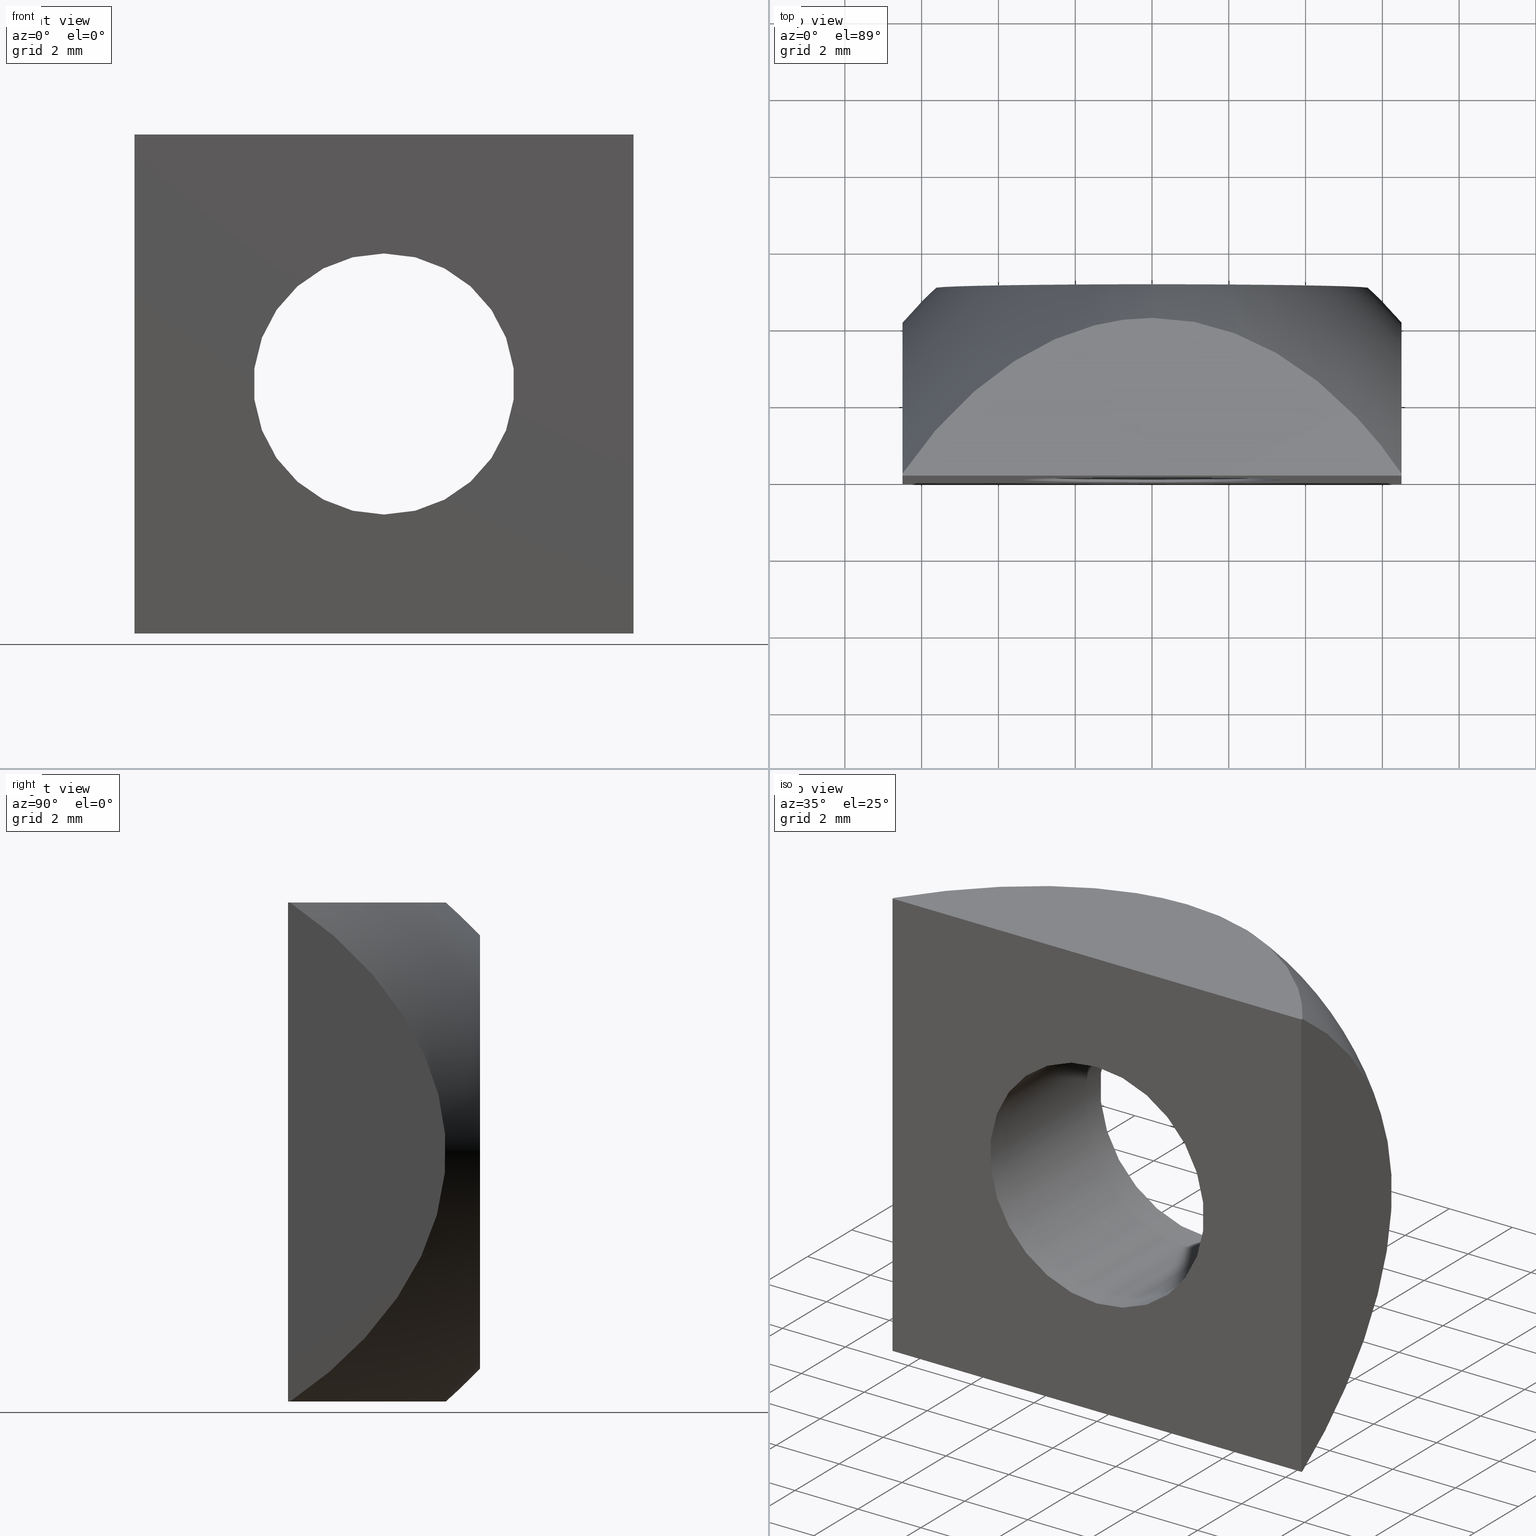
[diagram: canonical four-view strip — front | top / right | iso, engineering-drawing reading convention]
A machine part, canonical four-view strip (front | top / right | iso — engineering-drawing reading convention). The complete STEP part file that produces these views, byte-faithful:
ISO-10303-21;
HEADER;
FILE_DESCRIPTION (( 'STEP AP203' ),
    '1' );
FILE_NAME ('084.302.037.STEP',
    '2012-07-11T06:25:03',
    ( '' ),
    ( '' ),
    'SwSTEP 2.0',
    'SolidWorks 2011',
    '' );
FILE_SCHEMA (( 'CONFIG_CONTROL_DESIGN' ));
ENDSEC;

DATA;
#1 = EDGE_CURVE ( 'NONE', #430, #438, #247, .T. ) ;
#2 = APPROVAL ( #197, 'NON SPECIFICATO' ) ;
#3 = APPROVAL ( #134, 'NON SPECIFICATO' ) ;
#4 = EDGE_CURVE ( 'NONE', #365, #386, #443, .T. ) ;
#5 = ADVANCED_FACE ( 'NONE', ( #212 ), #454, .F. ) ;
#6 = ADVANCED_FACE ( 'NONE', ( #124 ), #341, .F. ) ;
#7 = EDGE_CURVE ( 'NONE', #131, #430, #218, .T. ) ;
#8 = EDGE_CURVE ( 'NONE', #238, #248, #72, .T. ) ;
#9 = EDGE_CURVE ( 'NONE', #305, #354, #57, .T. ) ;
#10 = EDGE_CURVE ( 'NONE', #416, #305, #100, .T. ) ;
#11 = EDGE_CURVE ( 'NONE', #416, #238, #85, .T. ) ;
#12 = CC_DESIGN_PERSON_AND_ORGANIZATION_ASSIGNMENT ( #192, #164, ( #61 ) ) ;
#13 = EDGE_CURVE ( 'NONE', #354, #438, #227, .T. ) ;
#14 = ADVANCED_FACE ( 'NONE', ( #237 ), #250, .F. ) ;
#15 = CC_DESIGN_PERSON_AND_ORGANIZATION_ASSIGNMENT ( #344, #348, ( #70 ) ) ;
#16 = EDGE_CURVE ( 'NONE', #226, #248, #53, .T. ) ;
#17 = CC_DESIGN_PERSON_AND_ORGANIZATION_ASSIGNMENT ( #189, #205, ( #46 ) ) ;
#18 = EDGE_CURVE ( 'NONE', #265, #216, #59, .T. ) ;
#19 = ADVANCED_FACE ( 'NONE', ( #174, #208 ), #435, .T. ) ;
#20 = ADVANCED_FACE ( 'NONE', ( #332 ), #80, .T. ) ;
#21 = EDGE_CURVE ( 'NONE', #149, #386, #66, .T. ) ;
#22 = EDGE_CURVE ( 'NONE', #130, #365, #94, .T. ) ;
#23 = EDGE_CURVE ( 'NONE', #248, #265, #58, .T. ) ;
#24 = CC_DESIGN_PERSON_AND_ORGANIZATION_ASSIGNMENT ( #196, #303, ( #83 ) ) ;
#25 = EDGE_CURVE ( 'NONE', #216, #305, #54, .T. ) ;
#26 = EDGE_CURVE ( 'NONE', #238, #416, #107, .T. ) ;
#27 = PRODUCT_RELATED_PRODUCT_CATEGORY ( 'detail', '', ( #61 ) ) ;
#28 = CC_DESIGN_DATE_AND_TIME_ASSIGNMENT ( #255, #357, ( #70 ) ) ;
#29 = EDGE_CURVE ( 'NONE', #365, #130, #86, .T. ) ;
#30 = ADVANCED_FACE ( 'NONE', ( #176 ), #342, .F. ) ;
#31 = ADVANCED_FACE ( 'NONE', ( #184, #320 ), #338, .F. ) ;
#32 = EDGE_CURVE ( 'NONE', #386, #149, #96, .T. ) ;
#33 = EDGE_CURVE ( 'NONE', #130, #149, #299, .T. ) ;
#34 = CC_DESIGN_DATE_AND_TIME_ASSIGNMENT ( #232, #333, ( #46 ) ) ;
#35 = CC_DESIGN_PERSON_AND_ORGANIZATION_ASSIGNMENT ( #326, #181, ( #83 ) ) ;
#36 = EDGE_CURVE ( 'NONE', #354, #226, #56, .T. ) ;
#37 = EDGE_CURVE ( 'NONE', #216, #430, #350, .T. ) ;
#38 = ADVANCED_FACE ( 'NONE', ( #163 ), #318, .F. ) ;
#39 = EDGE_CURVE ( 'NONE', #226, #295, #397, .T. ) ;
#40 = EDGE_CURVE ( 'NONE', #265, #131, #323, .T. ) ;
#41 = ADVANCED_FACE ( 'NONE', ( #319 ), #334, .F. ) ;
#42 = EDGE_CURVE ( 'NONE', #438, #295, #279, .T. ) ;
#43 = ADVANCED_FACE ( 'NONE', ( #225 ), #113, .T. ) ;
#44 = APPROVAL ( #302, 'NON SPECIFICATO' ) ;
#45 = EDGE_CURVE ( 'NONE', #295, #131, #368, .T. ) ;
#46 = PRODUCT_DEFINITION ( 'NON CONOSCIUTO', '', #83, #50 ) ;
#47 = MANIFOLD_SOLID_BREP ( 'Taglia-Rivoluzione2', #95 ) ;
#48 = UNCERTAINTY_MEASURE_WITH_UNIT (LENGTH_MEASURE( 1.000000000000000100E-005 ), #391, 'distance_accuracy_value', 'NONE');
#49 = PRODUCT_DEFINITION_SHAPE ( 'NONE', 'NONE',  #46 ) ;
#50 = DESIGN_CONTEXT ( 'detailed design', #52, 'design' ) ;
#51 = APPLICATION_CONTEXT ( 'configuration controlled 3d designs of mechanical parts and assemblies' ) ;
#52 = APPLICATION_CONTEXT ( 'configuration controlled 3d designs of mechanical parts and assemblies' ) ;
#53 = B_SPLINE_CURVE_WITH_KNOTS ( 'NONE', 3,
 ( #213, #294, #422, #173, #230, #264, #398, #126, #220, #202, #153, #393 ),
 .UNSPECIFIED., .F., .F.,
 ( 4, 2, 2, 2, 2, 4 ),
 ( 0.05469827054856388200, 0.05668888045020870100, 0.05867949035185351900, 0.05967479530267592900, 0.06067010025349833800, 0.06266071015514315700 ),
 .UNSPECIFIED. ) ;
#54 = B_SPLINE_CURVE_WITH_KNOTS ( 'NONE', 3,
 ( #423, #191, #271, #137, #364, #150, #395, #249, #245, #263, #235, #403 ),
 .UNSPECIFIED., .F., .F.,
 ( 4, 2, 2, 2, 2, 4 ),
 ( 0.05469827054856396500, 0.05668888045020877000, 0.05867949035185357500, 0.05967479530267597700, 0.06067010025349838000, 0.06266071015514318400 ),
 .UNSPECIFIED. ) ;
#55 = ADVANCED_BREP_SHAPE_REPRESENTATION ( '084.302.037', ( #47, #114 ), #88 ) ;
#56 = B_SPLINE_CURVE_WITH_KNOTS ( 'NONE', 3,
 ( #222, #347, #162, #292, #324, #285, #147, #252, #419, #321, #415, #118, #119, #388, #242, #405, #266, #360, #363, #179, #209, #449 ),
 .UNSPECIFIED., .F., .F.,
 ( 4, 2, 2, 2, 2, 2, 2, 2, 2, 2, 4 ),
 ( 0.05469827054856406900, 0.05668859883386818300, 0.05867892711917230300, 0.05967409126182435900, 0.06066925540447641600, 0.06265958368978052900, 0.06464991197508464200, 0.06664024026038875600, 0.06763540440304081900, 0.06863056854569286900, 0.07062089683099698200 ),
 .UNSPECIFIED. ) ;
#57 = B_SPLINE_CURVE_WITH_KNOTS ( 'NONE', 3,
 ( #229, #309, #442, #246, #254, #409, #387, #308, #389, #307, #366, #390 ),
 .UNSPECIFIED., .F., .F.,
 ( 4, 2, 2, 2, 2, 4 ),
 ( 0.0000000000000000000, 0.001990046668963425500, 0.003980093337926851100, 0.004975116672408563600, 0.005970140006890277100, 0.007960186675853698700 ),
 .UNSPECIFIED. ) ;
#58 = B_SPLINE_CURVE_WITH_KNOTS ( 'NONE', 3,
 ( #306, #167, #143, #396, #287, #210, #447, #445, #259, #327, #132, #444 ),
 .UNSPECIFIED., .F., .F.,
 ( 4, 2, 2, 2, 2, 4 ),
 ( 7.740424289688171000E-019, 0.001990046668963452900, 0.003980093337926904900, 0.004975116672408631300, 0.005970140006890356000, 0.007960186675853809700 ),
 .UNSPECIFIED. ) ;
#59 = B_SPLINE_CURVE_WITH_KNOTS ( 'NONE', 3,
 ( #427, #127, #300, #312, #180, #268, #253, #182, #155, #286, #258, #272, #313, #301, #122, #278, #121, #384, #429, #446, #193, #288 ),
 .UNSPECIFIED., .F., .F.,
 ( 4, 2, 2, 2, 2, 2, 2, 2, 2, 2, 4 ),
 ( 0.05469827054856389600, 0.05668859883386803000, 0.05867892711917216400, 0.05967409126182423400, 0.06066925540447630500, 0.06265958368978043200, 0.06464991197508457300, 0.06664024026038870000, 0.06763540440304077700, 0.06863056854569284100, 0.07062089683099698200 ),
 .UNSPECIFIED. ) ;
#60 = PERSON ( 'NON SPECIFICATO', 'NON SPECIFICATO', 'NON SPECIFICATO', ('NON SPECIFICATO'), ('NON SPECIFICATO'), ('NON SPECIFICATO') ) ;
#61 = PRODUCT ( '084.302.037', '084.302.037', '', ( #359 ) ) ;
#62 = AXIS2_PLACEMENT_3D ( 'NONE', #283, #284, #343 ) ;
#63 = AXIS2_PLACEMENT_3D ( 'NONE', #186, #450, #201 ) ;
#64 = VECTOR ( 'NONE', #159, 1000.000000000000000 ) ;
#65 = VECTOR ( 'NONE', #280, 1000.000000000000000 ) ;
#66 = CIRCLE ( 'NONE', #76, 3.399999999999999500 ) ;
#67 = AXIS2_PLACEMENT_3D ( 'NONE', #198, #178, #276 ) ;
#68 = VECTOR ( 'NONE', #233, 1000.000000000000000 ) ;
#69 = LOCAL_TIME ( 8, 25, 3.000000000000000000, #161 ) ;
#70 = SECURITY_CLASSIFICATION ( '', '', #335 ) ;
#71 = AXIS2_PLACEMENT_3D ( 'NONE', #125, #436, #195 ) ;
#72 = CIRCLE ( 'NONE', #106, 17.00000000000000000 ) ;
#73 = VECTOR ( 'NONE', #367, 1000.000000000000000 ) ;
#74 = AXIS2_PLACEMENT_3D ( 'NONE', #128, #410, #136 ) ;
#75 = CC_DESIGN_APPROVAL ( #2, ( #46 ) ) ;
#76 = AXIS2_PLACEMENT_3D ( 'NONE', #316, #169, #129 ) ;
#77 = VECTOR ( 'NONE', #379, 1000.000000000000000 ) ;
#78 = AXIS2_PLACEMENT_3D ( 'NONE', #219, #274, #394 ) ;
#79 = VECTOR ( 'NONE', #385, 1000.000000000000000 ) ;
#80 = TOROIDAL_SURFACE ( 'NONE', #62, -6.174269187523332600, 17.00000000000000000 ) ;
#81 = AXIS2_PLACEMENT_3D ( 'NONE', #439, #240, #330 ) ;
#82 = LOCAL_TIME ( 8, 25, 3.000000000000000000, #329 ) ;
#83 = PRODUCT_DEFINITION_FORMATION_WITH_SPECIFIED_SOURCE ( 'TUTTO', '', #61, .NOT_KNOWN. ) ;
#84 = AXIS2_PLACEMENT_3D ( 'NONE', #200, #418, #358 ) ;
#85 = CIRCLE ( 'NONE', #103, 5.644004798131256000 ) ;
#86 = CIRCLE ( 'NONE', #81, 3.399999999999999500 ) ;
#87 = VECTOR ( 'NONE', #371, 1000.000000000000000 ) ;
#88 =( GEOMETRIC_REPRESENTATION_CONTEXT ( 3 ) GLOBAL_UNCERTAINTY_ASSIGNED_CONTEXT ( ( #48 ) ) GLOBAL_UNIT_ASSIGNED_CONTEXT ( ( #391, #420, #346 ) ) REPRESENTATION_CONTEXT ( 'NONE', 'WORKASPACE' ) );
#89 = AXIS2_PLACEMENT_3D ( 'NONE', #188, #325, #277 ) ;
#90 = VECTOR ( 'NONE', #373, 1000.000000000000000 ) ;
#91 = CC_DESIGN_SECURITY_CLASSIFICATION ( #70, ( #83 ) ) ;
#92 = AXIS2_PLACEMENT_3D ( 'NONE', #175, #217, #166 ) ;
#93 = LOCAL_TIME ( 8, 25, 3.000000000000000000, #452 ) ;
#94 = CIRCLE ( 'NONE', #74, 3.399999999999999500 ) ;
#95 = CLOSED_SHELL ( 'NONE', ( #20, #41, #5, #30, #38, #14, #31, #19, #6, #43 ) ) ;
#96 = CIRCLE ( 'NONE', #78, 3.399999999999999500 ) ;
#97 = VECTOR ( 'NONE', #170, 1000.000000000000000 ) ;
#98 = CC_DESIGN_APPROVAL ( #44, ( #83 ) ) ;
#99 = AXIS2_PLACEMENT_3D ( 'NONE', #251, #345, #123 ) ;
#100 = CIRCLE ( 'NONE', #67, 17.00000000000000000 ) ;
#101 = LOCAL_TIME ( 8, 25, 3.000000000000000000, #328 ) ;
#102 = AXIS2_PLACEMENT_3D ( 'NONE', #353, #244, #406 ) ;
#103 = AXIS2_PLACEMENT_3D ( 'NONE', #440, #431, #156 ) ;
#104 = APPROVAL_PERSON_ORGANIZATION ( #352, #3, #275 ) ;
#105 = ORGANIZATION ( 'NON SPECIFICATO', 'NON SPECIFICATO', '' ) ;
#106 = AXIS2_PLACEMENT_3D ( 'NONE', #243, #404, #234 ) ;
#107 = CIRCLE ( 'NONE', #89, 5.644004798131256000 ) ;
#108 = AXIS2_PLACEMENT_3D ( 'NONE', #351, #380, #361 ) ;
#109 = APPROVAL_PERSON_ORGANIZATION ( #337, #44, #144 ) ;
#110 = AXIS2_PLACEMENT_3D ( 'NONE', #160, #322, #168 ) ;
#111 = AXIS2_PLACEMENT_3D ( 'NONE', #399, #311, #317 ) ;
#112 = CC_DESIGN_APPROVAL ( #3, ( #70 ) ) ;
#113 = TOROIDAL_SURFACE ( 'NONE', #84, -6.174269187523332600, 17.00000000000000000 ) ;
#114 = AXIS2_PLACEMENT_3D ( 'NONE', #206, #437, #152 ) ;
#115 = VECTOR ( 'NONE', #296, 1000.000000000000000 ) ;
#116 = APPROVAL_PERSON_ORGANIZATION ( #135, #2, #146 ) ;
#117 = LOCAL_TIME ( 8, 25, 3.000000000000000000, #154 ) ;
#118 = CARTESIAN_POINT ( 'NONE',  ( -6.499999999999999100, 4.109867876356189800, 0.6728596580752527200 ) ) ;
#119 = CARTESIAN_POINT ( 'NONE',  ( -6.500000000000000900, 3.993916635667155400, 1.325323139714466000 ) ) ;
#120 = ORIENTED_EDGE ( 'NONE', *, *, #8, .T. ) ;
#121 = CARTESIAN_POINT ( 'NONE',  ( 6.500000000000000900, 2.493975134977584500, -4.279363623376158700 ) ) ;
#122 = CARTESIAN_POINT ( 'NONE',  ( 6.500000000000001800, 3.255705233841443400, -3.184796144167166600 ) ) ;
#123 = DIRECTION ( 'NONE',  ( 1.000000000000000000, 0.0000000000000000000, -0.0000000000000000000 ) ) ;
#124 = FACE_OUTER_BOUND ( 'NONE', #260, .T. ) ;
#125 = CARTESIAN_POINT ( 'NONE',  ( -6.500000000000000000, 5.000000000000000000, -6.499999999999999100 ) ) ;
#126 = CARTESIAN_POINT ( 'NONE',  ( -2.579949745945144800, 3.540641047558074300, 6.500000000000001800 ) ) ;
#127 = CARTESIAN_POINT ( 'NONE',  ( 6.500000000000001800, 0.6029189208887844000, 6.130610147754108400 ) ) ;
#128 = CARTESIAN_POINT ( 'NONE',  ( 0.0000000000000000000, 0.0000000000000000000, 0.0000000000000000000 ) ) ;
#129 = DIRECTION ( 'NONE',  ( 0.0000000000000000000, 0.0000000000000000000, 1.000000000000000000 ) ) ;
#130 = VERTEX_POINT ( 'NONE', #304 ) ;
#131 = VERTEX_POINT ( 'NONE', #187 ) ;
#132 = CARTESIAN_POINT ( 'NONE',  ( 6.128323188261370000, 0.6063366316385198100, 6.499999999999999100 ) ) ;
#133 = ORIENTED_EDGE ( 'NONE', *, *, #39, .F. ) ;
#134 = APPROVAL_STATUS ( 'not_yet_approved' ) ;
#135 = PERSON_AND_ORGANIZATION ( #60, #105 ) ;
#136 = DIRECTION ( 'NONE',  ( 0.0000000000000000000, 0.0000000000000000000, -1.000000000000000000 ) ) ;
#137 = CARTESIAN_POINT ( 'NONE',  ( 4.797843221465077700, 2.074270503709216000, -6.500000000000000000 ) ) ;
#138 = DATE_AND_TIME ( #142, #69 ) ;
#139 = ORIENTED_EDGE ( 'NONE', *, *, #45, .T. ) ;
#140 = ORIENTED_EDGE ( 'NONE', *, *, #32, .T. ) ;
#141 = CALENDAR_DATE ( 2012, 11, 7 ) ;
#142 = CALENDAR_DATE ( 2012, 11, 7 ) ;
#143 = CARTESIAN_POINT ( 'NONE',  ( 1.326264826254138100, 3.993687183243997300, 6.500000000000001800 ) ) ;
#144 = APPROVAL_ROLE ( '' ) ;
#145 = ORIENTED_EDGE ( 'NONE', *, *, #40, .T. ) ;
#146 = APPROVAL_ROLE ( '' ) ;
#147 = CARTESIAN_POINT ( 'NONE',  ( -6.500000000000000000, 3.239278010035576500, -3.174652484528132800 ) ) ;
#148 = CARTESIAN_POINT ( 'NONE',  ( 0.0000000000000000000, 4.109735237956652300, -6.499999999999999100 ) ) ;
#149 = VERTEX_POINT ( 'NONE', #231 ) ;
#150 = CARTESIAN_POINT ( 'NONE',  ( 3.459394421651929900, 3.070451726834670000, -6.499999999999999100 ) ) ;
#151 = CALENDAR_DATE ( 2012, 11, 7 ) ;
#152 = DIRECTION ( 'NONE',  ( 1.000000000000000000, 0.0000000000000000000, 0.0000000000000000000 ) ) ;
#153 = CARTESIAN_POINT ( 'NONE',  ( -0.6728908548416628900, 4.109735237956652300, 6.500000000000000900 ) ) ;
#154 = COORDINATED_UNIVERSAL_TIME_OFFSET ( 1, 0, .AHEAD. ) ;
#155 = CARTESIAN_POINT ( 'NONE',  ( 6.500000000000003600, 3.672803873449343100, 2.269417947576013900 ) ) ;
#156 = DIRECTION ( 'NONE',  ( 0.0000000000000000000, 0.0000000000000000000, -1.000000000000000000 ) ) ;
#157 = ORIENTED_EDGE ( 'NONE', *, *, #42, .F. ) ;
#158 = APPLICATION_PROTOCOL_DEFINITION ( 'international standard', 'config_control_design', 1994, #52 ) ;
#159 = DIRECTION ( 'NONE',  ( 0.0000000000000000000, 0.0000000000000000000, -1.000000000000000000 ) ) ;
#160 = CARTESIAN_POINT ( 'NONE',  ( -6.500000000000000000, 5.000000000000000000, 6.500000000000000900 ) ) ;
#161 = COORDINATED_UNIVERSAL_TIME_OFFSET ( 1, 0, .AHEAD. ) ;
#162 = CARTESIAN_POINT ( 'NONE',  ( -6.500000000000000000, 1.119725732539849500, -5.718510072696506800 ) ) ;
#163 = FACE_OUTER_BOUND ( 'NONE', #417, .T. ) ;
#164 = PERSON_AND_ORGANIZATION_ROLE ( 'design_owner' ) ;
#165 = APPLICATION_PROTOCOL_DEFINITION ( 'international standard', 'config_control_design', 1994, #51 ) ;
#166 = DIRECTION ( 'NONE',  ( 0.0000000000000000000, -0.0000000000000000000, -1.000000000000000000 ) ) ;
#167 = CARTESIAN_POINT ( 'NONE',  ( 0.6727004638865451400, 4.109735237956653200, 6.500000000000001800 ) ) ;
#168 = DIRECTION ( 'NONE',  ( 0.0000000000000000000, 0.0000000000000000000, -1.000000000000000000 ) ) ;
#169 = DIRECTION ( 'NONE',  ( -0.0000000000000000000, 1.000000000000000000, -0.0000000000000000000 ) ) ;
#170 = DIRECTION ( 'NONE',  ( -1.000000000000000000, -0.0000000000000000000, -0.0000000000000000000 ) ) ;
#171 = ORIENTED_EDGE ( 'NONE', *, *, #16, .F. ) ;
#172 = ORIENTED_EDGE ( 'NONE', *, *, #23, .T. ) ;
#173 = CARTESIAN_POINT ( 'NONE',  ( -4.797843221465107900, 2.074270503709186200, 6.500000000000000000 ) ) ;
#174 = FACE_BOUND ( 'NONE', #239, .T. ) ;
#175 = CARTESIAN_POINT ( 'NONE',  ( -6.500000000000000000, 0.0000000000000000000, -6.499999999999999100 ) ) ;
#176 = FACE_OUTER_BOUND ( 'NONE', #297, .T. ) ;
#177 = CARTESIAN_POINT ( 'NONE',  ( 9.094269545930501500E-016, 4.999999999999999100, 5.644004798131256000 ) ) ;
#178 = DIRECTION ( 'NONE',  ( -1.000000000000000000, 0.0000000000000000000, 0.0000000000000000000 ) ) ;
#179 = CARTESIAN_POINT ( 'NONE',  ( -6.500000000000002700, 1.123578473997164400, 5.715031706449941900 ) ) ;
#180 = CARTESIAN_POINT ( 'NONE',  ( 6.500000000000001800, 2.513996523866347800, 4.284981449289306400 ) ) ;
#181 = PERSON_AND_ORGANIZATION_ROLE ( 'design_supplier' ) ;
#182 = CARTESIAN_POINT ( 'NONE',  ( 6.500000000000001800, 3.540326829205433500, 2.580638880078240500 ) ) ;
#183 = ORIENTED_EDGE ( 'NONE', *, *, #16, .T. ) ;
#184 = FACE_BOUND ( 'NONE', #413, .T. ) ;
#185 = ORIENTED_EDGE ( 'NONE', *, *, #13, .T. ) ;
#186 = CARTESIAN_POINT ( 'NONE',  ( 0.0000000000000000000, 5.000000000000000000, 0.0000000000000000000 ) ) ;
#187 = CARTESIAN_POINT ( 'NONE',  ( 6.500000000000000000, 0.0000000000000000000, 6.500000000000000900 ) ) ;
#188 = CARTESIAN_POINT ( 'NONE',  ( 0.0000000000000000000, 4.999999999999999100, 0.0000000000000000000 ) ) ;
#189 = PERSON_AND_ORGANIZATION ( #60, #105 ) ;
#190 = CARTESIAN_POINT ( 'NONE',  ( -6.499999999999997300, 0.05089004898358535900, -6.499999999999999100 ) ) ;
#191 = CARTESIAN_POINT ( 'NONE',  ( 6.130557881894588900, 0.6029970287828965200, -6.500000000000000900 ) ) ;
#192 = PERSON_AND_ORGANIZATION ( #60, #105 ) ;
#193 = CARTESIAN_POINT ( 'NONE',  ( 6.499999999999999100, 0.6064152342343858100, -6.128270591372422700 ) ) ;
#194 = EDGE_LOOP ( 'NONE', ( #270, #120, #172, #203, #310, #273 ) ) ;
#195 = DIRECTION ( 'NONE',  ( 0.0000000000000000000, -0.0000000000000000000, -1.000000000000000000 ) ) ;
#196 = PERSON_AND_ORGANIZATION ( #60, #105 ) ;
#197 = APPROVAL_STATUS ( 'not_yet_approved' ) ;
#198 = CARTESIAN_POINT ( 'NONE',  ( 0.0000000000000000000, -7.220000000000002400, 6.174269187523332600 ) ) ;
#199 = CARTESIAN_POINT ( 'NONE',  ( -6.500000000000093300, 0.05089004898344541600, 6.500000000000000900 ) ) ;
#200 = CARTESIAN_POINT ( 'NONE',  ( 0.0000000000000000000, -7.220000000000002400, 0.0000000000000000000 ) ) ;
#201 = DIRECTION ( 'NONE',  ( 0.0000000000000000000, 0.0000000000000000000, 1.000000000000000000 ) ) ;
#202 = CARTESIAN_POINT ( 'NONE',  ( -1.324089535981870500, 3.993502740051847200, 6.500000000000001800 ) ) ;
#203 = ORIENTED_EDGE ( 'NONE', *, *, #18, .T. ) ;
#204 = ORIENTED_EDGE ( 'NONE', *, *, #33, .T. ) ;
#205 = PERSON_AND_ORGANIZATION_ROLE ( 'creator' ) ;
#206 = CARTESIAN_POINT ( 'NONE',  ( 0.0000000000000000000, 0.0000000000000000000, 0.0000000000000000000 ) ) ;
#207 = ORIENTED_EDGE ( 'NONE', *, *, #37, .F. ) ;
#208 = FACE_OUTER_BOUND ( 'NONE', #314, .T. ) ;
#209 = CARTESIAN_POINT ( 'NONE',  ( -6.500000000000002700, 0.6064152342343736000, 6.128270591372427100 ) ) ;
#210 = CARTESIAN_POINT ( 'NONE',  ( 4.012227267387110900, 2.697749916528785700, 6.500000000000001800 ) ) ;
#211 = DATE_AND_TIME ( #141, #117 ) ;
#212 = FACE_OUTER_BOUND ( 'NONE', #441, .T. ) ;
#213 = CARTESIAN_POINT ( 'NONE',  ( -6.500000000000093300, 0.05089004898344541600, 6.500000000000000900 ) ) ;
#214 = CARTESIAN_POINT ( 'NONE',  ( -6.500000000000000000, 0.0000000000000000000, -6.499999999999999100 ) ) ;
#215 = CARTESIAN_POINT ( 'NONE',  ( 6.500000000000000000, 0.05089004898344110000, 6.500000000000096800 ) ) ;
#216 = VERTEX_POINT ( 'NONE', #383 ) ;
#217 = DIRECTION ( 'NONE',  ( 0.0000000000000000000, -1.000000000000000000, 0.0000000000000000000 ) ) ;
#218 = LINE ( 'NONE', #369, #64 ) ;
#219 = CARTESIAN_POINT ( 'NONE',  ( 0.0000000000000000000, 5.000000000000000000, 0.0000000000000000000 ) ) ;
#220 = CARTESIAN_POINT ( 'NONE',  ( -2.268669397716684100, 3.673102568464421000, 6.500000000000000000 ) ) ;
#221 = ORIENTED_EDGE ( 'NONE', *, *, #10, .T. ) ;
#222 = CARTESIAN_POINT ( 'NONE',  ( -6.499999999999997300, 0.05089004898358535900, -6.499999999999999100 ) ) ;
#223 = CARTESIAN_POINT ( 'NONE',  ( -6.500000000000000000, 5.000000000000000000, -6.499999999999999100 ) ) ;
#224 = CARTESIAN_POINT ( 'NONE',  ( 0.0000000000000000000, 4.999999999999999100, -5.644004798131256000 ) ) ;
#225 = FACE_OUTER_BOUND ( 'NONE', #293, .T. ) ;
#226 = VERTEX_POINT ( 'NONE', #199 ) ;
#227 = LINE ( 'NONE', #223, #115 ) ;
#228 = SHAPE_DEFINITION_REPRESENTATION ( #49, #55 ) ;
#229 = CARTESIAN_POINT ( 'NONE',  ( 0.0000000000000000000, 4.109735237956652300, -6.499999999999999100 ) ) ;
#230 = CARTESIAN_POINT ( 'NONE',  ( -4.284615633495739900, 2.514295792640039600, 6.500000000000000000 ) ) ;
#231 = CARTESIAN_POINT ( 'NONE',  ( 0.0000000000000000000, 5.000000000000000000, 3.399999999999999500 ) ) ;
#232 = DATE_AND_TIME ( #151, #82 ) ;
#233 = DIRECTION ( 'NONE',  ( -0.0000000000000000000, 1.000000000000000000, -0.0000000000000000000 ) ) ;
#234 = DIRECTION ( 'NONE',  ( -1.224646799147353200E-016, 0.0000000000000000000, -1.000000000000000000 ) ) ;
#235 = CARTESIAN_POINT ( 'NONE',  ( 0.6728908548416576700, 4.109735237956652300, -6.500000000000000000 ) ) ;
#236 = EDGE_LOOP ( 'NONE', ( #412, #381 ) ) ;
#237 = FACE_OUTER_BOUND ( 'NONE', #331, .T. ) ;
#238 = VERTEX_POINT ( 'NONE', #177 ) ;
#239 = EDGE_LOOP ( 'NONE', ( #378, #451 ) ) ;
#240 = DIRECTION ( 'NONE',  ( 0.0000000000000000000, -1.000000000000000000, 0.0000000000000000000 ) ) ;
#241 = ORIENTED_EDGE ( 'NONE', *, *, #1, .F. ) ;
#242 = CARTESIAN_POINT ( 'NONE',  ( -6.500000000000000000, 3.255705233841415000, 3.184796144167208400 ) ) ;
#243 = CARTESIAN_POINT ( 'NONE',  ( -7.561298997574578500E-016, -7.220000000000002400, -6.174269187523332600 ) ) ;
#244 = DIRECTION ( 'NONE',  ( -0.0000000000000000000, 1.000000000000000000, -0.0000000000000000000 ) ) ;
#245 = CARTESIAN_POINT ( 'NONE',  ( 2.268669397716664100, 3.673102568464428500, -6.500000000000000000 ) ) ;
#246 = CARTESIAN_POINT ( 'NONE',  ( -2.597829809248589000, 3.560517489800219900, -6.499999999999997300 ) ) ;
#247 = LINE ( 'NONE', #214, #97 ) ;
#248 = VERTEX_POINT ( 'NONE', #414 ) ;
#249 = CARTESIAN_POINT ( 'NONE',  ( 2.579949745945124800, 3.540641047558085400, -6.500000000000000900 ) ) ;
#250 = PLANE ( 'NONE',  #99 ) ;
#251 = CARTESIAN_POINT ( 'NONE',  ( -6.500000000000000000, 5.000000000000000000, -6.499999999999999100 ) ) ;
#252 = CARTESIAN_POINT ( 'NONE',  ( -6.500000000000000900, 3.540326829205480600, -2.580638880078135200 ) ) ;
#253 = CARTESIAN_POINT ( 'NONE',  ( 6.500000000000000000, 3.239278010035516500, 3.174652484528239800 ) ) ;
#254 = CARTESIAN_POINT ( 'NONE',  ( -3.185363310006274200, 3.255375731933094000, -6.500000000000000000 ) ) ;
#255 = DATE_AND_TIME ( #433, #93 ) ;
#256 = CARTESIAN_POINT ( 'NONE',  ( -6.500000000000000000, 0.0000000000000000000, -6.499999999999999100 ) ) ;
#257 = ORIENTED_EDGE ( 'NONE', *, *, #9, .T. ) ;
#258 = CARTESIAN_POINT ( 'NONE',  ( 6.500000000000000900, 4.109602374153204200, 0.6751484999688126500 ) ) ;
#259 = CARTESIAN_POINT ( 'NONE',  ( 5.027364923004412800, 1.836211336588453600, 6.500000000000000900 ) ) ;
#260 = EDGE_LOOP ( 'NONE', ( #339, #448, #204, #315 ) ) ;
#261 = ORIENTED_EDGE ( 'NONE', *, *, #33, .F. ) ;
#262 = ORIENTED_EDGE ( 'NONE', *, *, #18, .F. ) ;
#263 = CARTESIAN_POINT ( 'NONE',  ( 1.324089535981858300, 3.993502740051849000, -6.500000000000001800 ) ) ;
#264 = CARTESIAN_POINT ( 'NONE',  ( -3.459394421651953900, 3.070451726834651800, 6.500000000000000900 ) ) ;
#265 = VERTEX_POINT ( 'NONE', #215 ) ;
#266 = CARTESIAN_POINT ( 'NONE',  ( -6.500000000000000000, 2.493975134977553400, 4.279363623376193400 ) ) ;
#267 = CARTESIAN_POINT ( 'NONE',  ( -6.500000000000000000, 0.0000000000000000000, 6.500000000000000900 ) ) ;
#268 = CARTESIAN_POINT ( 'NONE',  ( 6.500000000000000000, 3.070129253417008800, 3.459911975005473200 ) ) ;
#269 = CARTESIAN_POINT ( 'NONE',  ( -6.500000000000000000, 0.0000000000000000000, 6.500000000000000900 ) ) ;
#270 = ORIENTED_EDGE ( 'NONE', *, *, #11, .T. ) ;
#271 = CARTESIAN_POINT ( 'NONE',  ( 5.718393653599501500, 1.119872145102332100, -6.500000000000000000 ) ) ;
#272 = CARTESIAN_POINT ( 'NONE',  ( 6.499999999999999100, 4.109867876356198700, -0.6728596580751724500 ) ) ;
#273 = ORIENTED_EDGE ( 'NONE', *, *, #10, .F. ) ;
#274 = DIRECTION ( 'NONE',  ( -0.0000000000000000000, 1.000000000000000000, -0.0000000000000000000 ) ) ;
#275 = APPROVAL_ROLE ( '' ) ;
#276 = DIRECTION ( 'NONE',  ( 0.0000000000000000000, 0.0000000000000000000, 1.000000000000000000 ) ) ;
#277 = DIRECTION ( 'NONE',  ( 0.0000000000000000000, 0.0000000000000000000, -1.000000000000000000 ) ) ;
#278 = CARTESIAN_POINT ( 'NONE',  ( 6.500000000000000000, 2.698058606819216700, -4.011808767700928000 ) ) ;
#279 = LINE ( 'NONE', #267, #79 ) ;
#280 = DIRECTION ( 'NONE',  ( -0.0000000000000000000, -1.000000000000000000, -0.0000000000000000000 ) ) ;
#281 = APPROVAL_DATE_TIME ( #211, #3 ) ;
#282 = ORIENTED_EDGE ( 'NONE', *, *, #21, .F. ) ;
#283 = CARTESIAN_POINT ( 'NONE',  ( 0.0000000000000000000, -7.220000000000002400, 0.0000000000000000000 ) ) ;
#284 = DIRECTION ( 'NONE',  ( -0.0000000000000000000, -1.000000000000000000, -0.0000000000000000000 ) ) ;
#285 = CARTESIAN_POINT ( 'NONE',  ( -6.500000000000000000, 3.070129253417075400, -3.459911975005362600 ) ) ;
#286 = CARTESIAN_POINT ( 'NONE',  ( 6.499999999999999100, 3.993284070446342100, 1.324997778549834400 ) ) ;
#287 = CARTESIAN_POINT ( 'NONE',  ( 3.185363310006315500, 3.255375731933069200, 6.500000000000002700 ) ) ;
#288 = CARTESIAN_POINT ( 'NONE',  ( 6.500000000000000000, 0.05089004898344625500, -6.499999999999999100 ) ) ;
#289 = ORIENTED_EDGE ( 'NONE', *, *, #45, .F. ) ;
#290 = CARTESIAN_POINT ( 'NONE',  ( 4.163799117101000100E-016, 0.0000000000000000000, -3.399999999999999500 ) ) ;
#291 = CARTESIAN_POINT ( 'NONE',  ( -6.500000000000000000, 0.0000000000000000000, 6.500000000000000900 ) ) ;
#292 = CARTESIAN_POINT ( 'NONE',  ( -6.500000000000000000, 2.074011848386487800, -4.798117493915410300 ) ) ;
#293 = EDGE_LOOP ( 'NONE', ( #377, #370, #221, #257, #375, #183 ) ) ;
#294 = CARTESIAN_POINT ( 'NONE',  ( -6.130557881894620000, 0.6029970287828481100, 6.500000000000000000 ) ) ;
#295 = VERTEX_POINT ( 'NONE', #269 ) ;
#296 = DIRECTION ( 'NONE',  ( -0.0000000000000000000, -1.000000000000000000, -0.0000000000000000000 ) ) ;
#297 = EDGE_LOOP ( 'NONE', ( #171, #402, #139, #425, #401 ) ) ;
#298 = ORIENTED_EDGE ( 'NONE', *, *, #22, .T. ) ;
#299 = LINE ( 'NONE', #382, #68 ) ;
#300 = CARTESIAN_POINT ( 'NONE',  ( 6.500000000000000900, 1.119725732539727000, 5.718510072696611600 ) ) ;
#301 = CARTESIAN_POINT ( 'NONE',  ( 6.500000000000000000, 3.560839629399143100, -2.597151962111099400 ) ) ;
#302 = APPROVAL_STATUS ( 'not_yet_approved' ) ;
#303 = PERSON_AND_ORGANIZATION_ROLE ( 'creator' ) ;
#304 = CARTESIAN_POINT ( 'NONE',  ( 0.0000000000000000000, 0.0000000000000000000, 3.399999999999999500 ) ) ;
#305 = VERTEX_POINT ( 'NONE', #148 ) ;
#306 = CARTESIAN_POINT ( 'NONE',  ( 7.960204194457799400E-016, 4.109735237956652300, 6.500000000000000900 ) ) ;
#307 = CARTESIAN_POINT ( 'NONE',  ( -5.715148467929137300, 1.123431959365110500, -6.500000000000000000 ) ) ;
#308 = CARTESIAN_POINT ( 'NONE',  ( -4.786672189913854700, 2.063239728859812800, -6.499999999999998200 ) ) ;
#309 = CARTESIAN_POINT ( 'NONE',  ( -0.6727004638865354800, 4.109735237956653200, -6.500000000000001800 ) ) ;
#310 = ORIENTED_EDGE ( 'NONE', *, *, #25, .T. ) ;
#311 = DIRECTION ( 'NONE',  ( 0.0000000000000000000, 0.0000000000000000000, -1.000000000000000000 ) ) ;
#312 = CARTESIAN_POINT ( 'NONE',  ( 6.500000000000000900, 2.074011848386387900, 4.798117493915518700 ) ) ;
#313 = CARTESIAN_POINT ( 'NONE',  ( 6.500000000000000900, 3.993916635667172700, -1.325323139714399000 ) ) ;
#314 = EDGE_LOOP ( 'NONE', ( #157, #241, #374, #289 ) ) ;
#315 = ORIENTED_EDGE ( 'NONE', *, *, #21, .T. ) ;
#316 = CARTESIAN_POINT ( 'NONE',  ( 0.0000000000000000000, 5.000000000000000000, 0.0000000000000000000 ) ) ;
#317 = DIRECTION ( 'NONE',  ( -1.000000000000000000, 0.0000000000000000000, -0.0000000000000000000 ) ) ;
#318 = PLANE ( 'NONE',  #108 ) ;
#319 = FACE_OUTER_BOUND ( 'NONE', #400, .T. ) ;
#320 = FACE_OUTER_BOUND ( 'NONE', #236, .T. ) ;
#321 = CARTESIAN_POINT ( 'NONE',  ( -6.500000000000000900, 3.993284070446364800, -1.324997778549733300 ) ) ;
#322 = DIRECTION ( 'NONE',  ( 1.000000000000000000, -0.0000000000000000000, 0.0000000000000000000 ) ) ;
#323 = LINE ( 'NONE', #376, #73 ) ;
#324 = CARTESIAN_POINT ( 'NONE',  ( -6.500000000000000000, 2.513996523866434400, -4.284981449289193600 ) ) ;
#325 = DIRECTION ( 'NONE',  ( 0.0000000000000000000, -1.000000000000000000, 0.0000000000000000000 ) ) ;
#326 = PERSON_AND_ORGANIZATION ( #60, #105 ) ;
#327 = CARTESIAN_POINT ( 'NONE',  ( 5.715148467929195100, 1.123431959365039700, 6.499999999999999100 ) ) ;
#328 = COORDINATED_UNIVERSAL_TIME_OFFSET ( 1, 0, .AHEAD. ) ;
#329 = COORDINATED_UNIVERSAL_TIME_OFFSET ( 1, 0, .AHEAD. ) ;
#330 = DIRECTION ( 'NONE',  ( 0.0000000000000000000, 0.0000000000000000000, -1.000000000000000000 ) ) ;
#331 = EDGE_LOOP ( 'NONE', ( #426, #428, #421, #432, #356 ) ) ;
#332 = FACE_OUTER_BOUND ( 'NONE', #194, .T. ) ;
#333 = DATE_TIME_ROLE ( 'creation_date' ) ;
#334 = CYLINDRICAL_SURFACE ( 'NONE', #102, 3.399999999999999500 ) ;
#335 = SECURITY_CLASSIFICATION_LEVEL ( 'unclassified' ) ;
#336 = CARTESIAN_POINT ( 'NONE',  ( 6.500000000000000000, 0.0000000000000000000, -6.499999999999999100 ) ) ;
#337 = PERSON_AND_ORGANIZATION ( #60, #105 ) ;
#338 = PLANE ( 'NONE',  #71 ) ;
#339 = ORIENTED_EDGE ( 'NONE', *, *, #4, .F. ) ;
#340 = ORIENTED_EDGE ( 'NONE', *, *, #32, .F. ) ;
#341 = CYLINDRICAL_SURFACE ( 'NONE', #63, 3.399999999999999500 ) ;
#342 = PLANE ( 'NONE',  #111 ) ;
#343 = DIRECTION ( 'NONE',  ( 0.0000000000000000000, 0.0000000000000000000, -1.000000000000000000 ) ) ;
#344 = PERSON_AND_ORGANIZATION ( #60, #105 ) ;
#345 = DIRECTION ( 'NONE',  ( 0.0000000000000000000, 0.0000000000000000000, 1.000000000000000000 ) ) ;
#346 =( NAMED_UNIT ( * ) SI_UNIT ( $, .STERADIAN. ) SOLID_ANGLE_UNIT ( ) );
#347 = CARTESIAN_POINT ( 'NONE',  ( -6.500000000000001800, 0.6029189208889170800, -6.130610147754007100 ) ) ;
#348 = PERSON_AND_ORGANIZATION_ROLE ( 'classification_officer' ) ;
#349 = CARTESIAN_POINT ( 'NONE',  ( 4.163799117101000100E-016, 5.000000000000000000, -3.399999999999999500 ) ) ;
#350 = LINE ( 'NONE', #372, #77 ) ;
#351 = CARTESIAN_POINT ( 'NONE',  ( 6.500000000000000000, 5.000000000000000000, 6.500000000000000900 ) ) ;
#352 = PERSON_AND_ORGANIZATION ( #60, #105 ) ;
#353 = CARTESIAN_POINT ( 'NONE',  ( 0.0000000000000000000, 5.000000000000000000, 0.0000000000000000000 ) ) ;
#354 = VERTEX_POINT ( 'NONE', #190 ) ;
#355 = APPROVAL_DATE_TIME ( #138, #2 ) ;
#356 = ORIENTED_EDGE ( 'NONE', *, *, #9, .F. ) ;
#357 = DATE_TIME_ROLE ( 'classification_date' ) ;
#358 = DIRECTION ( 'NONE',  ( 0.0000000000000000000, 0.0000000000000000000, -1.000000000000000000 ) ) ;
#359 = MECHANICAL_CONTEXT ( 'NONE', #51, 'mechanical' ) ;
#360 = CARTESIAN_POINT ( 'NONE',  ( -6.500000000000000900, 2.063493455043966300, 4.786396139126116700 ) ) ;
#361 = DIRECTION ( 'NONE',  ( 0.0000000000000000000, 0.0000000000000000000, 1.000000000000000000 ) ) ;
#362 = CARTESIAN_POINT ( 'NONE',  ( -6.500000000000000000, 5.000000000000000000, 6.500000000000000900 ) ) ;
#363 = CARTESIAN_POINT ( 'NONE',  ( -6.500000000000001800, 1.836440676869264900, 5.027131309837757900 ) ) ;
#364 = CARTESIAN_POINT ( 'NONE',  ( 4.284615633495711500, 2.514295792640064900, -6.499999999999999100 ) ) ;
#365 = VERTEX_POINT ( 'NONE', #290 ) ;
#366 = CARTESIAN_POINT ( 'NONE',  ( -6.128323188261311400, 0.6063366316386016300, -6.500000000000000900 ) ) ;
#367 = DIRECTION ( 'NONE',  ( -0.0000000000000000000, -1.000000000000000000, -0.0000000000000000000 ) ) ;
#368 = LINE ( 'NONE', #291, #87 ) ;
#369 = CARTESIAN_POINT ( 'NONE',  ( 6.500000000000000000, 0.0000000000000000000, 6.500000000000000900 ) ) ;
#370 = ORIENTED_EDGE ( 'NONE', *, *, #26, .T. ) ;
#371 = DIRECTION ( 'NONE',  ( 1.000000000000000000, 0.0000000000000000000, 0.0000000000000000000 ) ) ;
#372 = CARTESIAN_POINT ( 'NONE',  ( 6.500000000000000000, 5.000000000000000000, -6.499999999999999100 ) ) ;
#373 = DIRECTION ( 'NONE',  ( -0.0000000000000000000, 1.000000000000000000, -0.0000000000000000000 ) ) ;
#374 = ORIENTED_EDGE ( 'NONE', *, *, #7, .F. ) ;
#375 = ORIENTED_EDGE ( 'NONE', *, *, #36, .T. ) ;
#376 = CARTESIAN_POINT ( 'NONE',  ( 6.500000000000000000, 5.000000000000000000, 6.500000000000000900 ) ) ;
#377 = ORIENTED_EDGE ( 'NONE', *, *, #8, .F. ) ;
#378 = ORIENTED_EDGE ( 'NONE', *, *, #22, .F. ) ;
#379 = DIRECTION ( 'NONE',  ( -0.0000000000000000000, -1.000000000000000000, -0.0000000000000000000 ) ) ;
#380 = DIRECTION ( 'NONE',  ( -1.000000000000000000, 0.0000000000000000000, 0.0000000000000000000 ) ) ;
#381 = ORIENTED_EDGE ( 'NONE', *, *, #26, .F. ) ;
#382 = CARTESIAN_POINT ( 'NONE',  ( 0.0000000000000000000, 5.000000000000000000, 3.399999999999999500 ) ) ;
#383 = CARTESIAN_POINT ( 'NONE',  ( 6.500000000000000000, 0.05089004898344625500, -6.499999999999999100 ) ) ;
#384 = CARTESIAN_POINT ( 'NONE',  ( 6.500000000000000000, 2.063493455043995200, -4.786396139126090100 ) ) ;
#385 = DIRECTION ( 'NONE',  ( -0.0000000000000000000, -0.0000000000000000000, 1.000000000000000000 ) ) ;
#386 = VERTEX_POINT ( 'NONE', #407 ) ;
#387 = CARTESIAN_POINT ( 'NONE',  ( -4.279733229958274000, 2.493680659320166800, -6.499999999999999100 ) ) ;
#388 = CARTESIAN_POINT ( 'NONE',  ( -6.499999999999999100, 3.560839629399119100, 2.597151962111146500 ) ) ;
#389 = CARTESIAN_POINT ( 'NONE',  ( -5.027364923004357800, 1.836211336588508900, -6.500000000000000000 ) ) ;
#390 = CARTESIAN_POINT ( 'NONE',  ( -6.499999999999997300, 0.05089004898358535900, -6.499999999999999100 ) ) ;
#391 =( LENGTH_UNIT ( ) NAMED_UNIT ( * ) SI_UNIT ( .MILLI., .METRE. ) );
#392 = APPROVAL_DATE_TIME ( #453, #44 ) ;
#393 = CARTESIAN_POINT ( 'NONE',  ( 7.960204194457799400E-016, 4.109735237956652300, 6.500000000000000900 ) ) ;
#394 = DIRECTION ( 'NONE',  ( 0.0000000000000000000, 0.0000000000000000000, 1.000000000000000000 ) ) ;
#395 = CARTESIAN_POINT ( 'NONE',  ( 3.174080856937301100, 3.239602677233732700, -6.499999999999999100 ) ) ;
#396 = CARTESIAN_POINT ( 'NONE',  ( 2.597829809248621400, 3.560517489800200300, 6.500000000000001800 ) ) ;
#397 = LINE ( 'NONE', #362, #65 ) ;
#398 = CARTESIAN_POINT ( 'NONE',  ( -3.174080856937323800, 3.239602677233719000, 6.500000000000000900 ) ) ;
#399 = CARTESIAN_POINT ( 'NONE',  ( -6.500000000000000000, 5.000000000000000000, 6.500000000000000900 ) ) ;
#400 = EDGE_LOOP ( 'NONE', ( #298, #455, #140, #261 ) ) ;
#401 = ORIENTED_EDGE ( 'NONE', *, *, #23, .F. ) ;
#402 = ORIENTED_EDGE ( 'NONE', *, *, #39, .T. ) ;
#403 = CARTESIAN_POINT ( 'NONE',  ( 0.0000000000000000000, 4.109735237956652300, -6.499999999999999100 ) ) ;
#404 = DIRECTION ( 'NONE',  ( 1.000000000000000000, 0.0000000000000000000, -1.224646799147353200E-016 ) ) ;
#405 = CARTESIAN_POINT ( 'NONE',  ( -6.499999999999998200, 2.698058606819188300, 4.011808767700959100 ) ) ;
#406 = DIRECTION ( 'NONE',  ( 0.0000000000000000000, 0.0000000000000000000, 1.000000000000000000 ) ) ;
#407 = CARTESIAN_POINT ( 'NONE',  ( 4.163799117101000100E-016, 5.000000000000000000, -3.399999999999999500 ) ) ;
#408 = ORIENTED_EDGE ( 'NONE', *, *, #36, .F. ) ;
#409 = CARTESIAN_POINT ( 'NONE',  ( -4.012227267387062000, 2.697749916528825200, -6.500000000000000000 ) ) ;
#410 = DIRECTION ( 'NONE',  ( 0.0000000000000000000, -1.000000000000000000, 0.0000000000000000000 ) ) ;
#411 = ORIENTED_EDGE ( 'NONE', *, *, #7, .T. ) ;
#412 = ORIENTED_EDGE ( 'NONE', *, *, #11, .F. ) ;
#413 = EDGE_LOOP ( 'NONE', ( #282, #340 ) ) ;
#414 = CARTESIAN_POINT ( 'NONE',  ( 7.960204194457799400E-016, 4.109735237956652300, 6.500000000000000900 ) ) ;
#415 = CARTESIAN_POINT ( 'NONE',  ( -6.500000000000000900, 4.109602374153216600, -0.6751484999687205100 ) ) ;
#416 = VERTEX_POINT ( 'NONE', #224 ) ;
#417 = EDGE_LOOP ( 'NONE', ( #262, #145, #411, #207 ) ) ;
#418 = DIRECTION ( 'NONE',  ( -0.0000000000000000000, -1.000000000000000000, -0.0000000000000000000 ) ) ;
#419 = CARTESIAN_POINT ( 'NONE',  ( -6.499999999999999100, 3.672803873449383100, -2.269417947575904600 ) ) ;
#420 =( NAMED_UNIT ( * ) PLANE_ANGLE_UNIT ( ) SI_UNIT ( $, .RADIAN. ) );
#421 = ORIENTED_EDGE ( 'NONE', *, *, #1, .T. ) ;
#422 = CARTESIAN_POINT ( 'NONE',  ( -5.718393653599532600, 1.119872145102291300, 6.500000000000001800 ) ) ;
#423 = CARTESIAN_POINT ( 'NONE',  ( 6.500000000000000000, 0.05089004898344625500, -6.499999999999999100 ) ) ;
#424 = CALENDAR_DATE ( 2012, 11, 7 ) ;
#425 = ORIENTED_EDGE ( 'NONE', *, *, #40, .F. ) ;
#426 = ORIENTED_EDGE ( 'NONE', *, *, #25, .F. ) ;
#427 = CARTESIAN_POINT ( 'NONE',  ( 6.500000000000000000, 0.05089004898344110000, 6.500000000000096800 ) ) ;
#428 = ORIENTED_EDGE ( 'NONE', *, *, #37, .T. ) ;
#429 = CARTESIAN_POINT ( 'NONE',  ( 6.500000000000000000, 1.836440676869278300, -5.027131309837737500 ) ) ;
#430 = VERTEX_POINT ( 'NONE', #336 ) ;
#431 = DIRECTION ( 'NONE',  ( 0.0000000000000000000, -1.000000000000000000, 0.0000000000000000000 ) ) ;
#432 = ORIENTED_EDGE ( 'NONE', *, *, #13, .F. ) ;
#433 = CALENDAR_DATE ( 2012, 11, 7 ) ;
#434 = ORIENTED_EDGE ( 'NONE', *, *, #42, .T. ) ;
#435 = PLANE ( 'NONE',  #92 ) ;
#436 = DIRECTION ( 'NONE',  ( 0.0000000000000000000, -1.000000000000000000, 0.0000000000000000000 ) ) ;
#437 = DIRECTION ( 'NONE',  ( 0.0000000000000000000, 0.0000000000000000000, 1.000000000000000000 ) ) ;
#438 = VERTEX_POINT ( 'NONE', #256 ) ;
#439 = CARTESIAN_POINT ( 'NONE',  ( 0.0000000000000000000, 0.0000000000000000000, 0.0000000000000000000 ) ) ;
#440 = CARTESIAN_POINT ( 'NONE',  ( 0.0000000000000000000, 4.999999999999999100, 0.0000000000000000000 ) ) ;
#441 = EDGE_LOOP ( 'NONE', ( #408, #185, #434, #133 ) ) ;
#442 = CARTESIAN_POINT ( 'NONE',  ( -1.326264826254120100, 3.993687183244005300, -6.499999999999999100 ) ) ;
#443 = LINE ( 'NONE', #349, #90 ) ;
#444 = CARTESIAN_POINT ( 'NONE',  ( 6.500000000000000000, 0.05089004898344110000, 6.500000000000096800 ) ) ;
#445 = CARTESIAN_POINT ( 'NONE',  ( 4.786672189913906200, 2.063239728859763000, 6.500000000000001800 ) ) ;
#446 = CARTESIAN_POINT ( 'NONE',  ( 6.500000000000000000, 1.123578473997169500, -5.715031706449933000 ) ) ;
#447 = CARTESIAN_POINT ( 'NONE',  ( 4.279733229958324600, 2.493680659320124600, 6.500000000000000000 ) ) ;
#448 = ORIENTED_EDGE ( 'NONE', *, *, #29, .T. ) ;
#449 = CARTESIAN_POINT ( 'NONE',  ( -6.500000000000093300, 0.05089004898344541600, 6.500000000000000900 ) ) ;
#450 = DIRECTION ( 'NONE',  ( -0.0000000000000000000, 1.000000000000000000, -0.0000000000000000000 ) ) ;
#451 = ORIENTED_EDGE ( 'NONE', *, *, #29, .F. ) ;
#452 = COORDINATED_UNIVERSAL_TIME_OFFSET ( 1, 0, .AHEAD. ) ;
#453 = DATE_AND_TIME ( #424, #101 ) ;
#454 = PLANE ( 'NONE',  #110 ) ;
#455 = ORIENTED_EDGE ( 'NONE', *, *, #4, .T. ) ;
ENDSEC;
END-ISO-10303-21;
